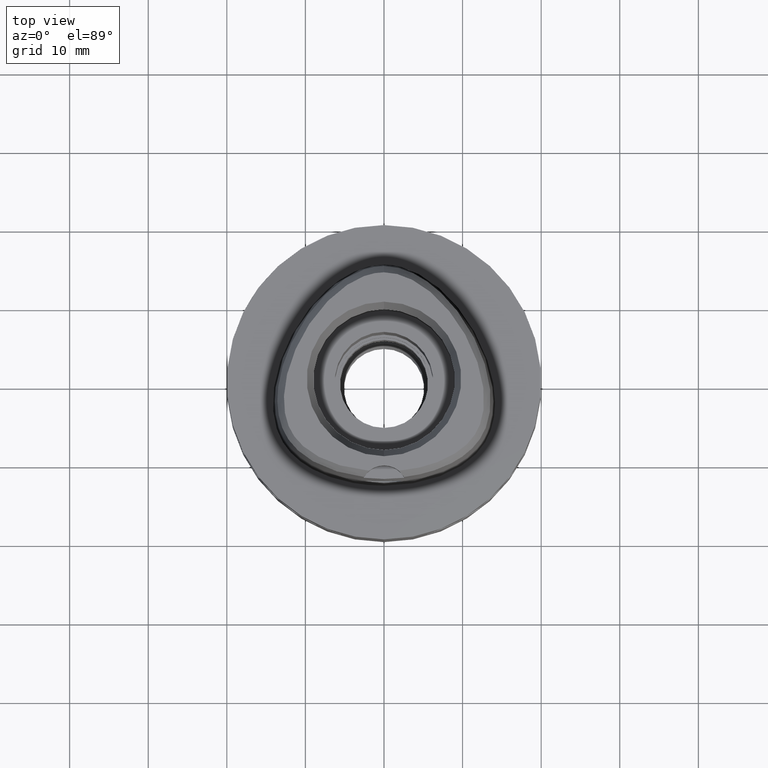
[diagram: clean part render]
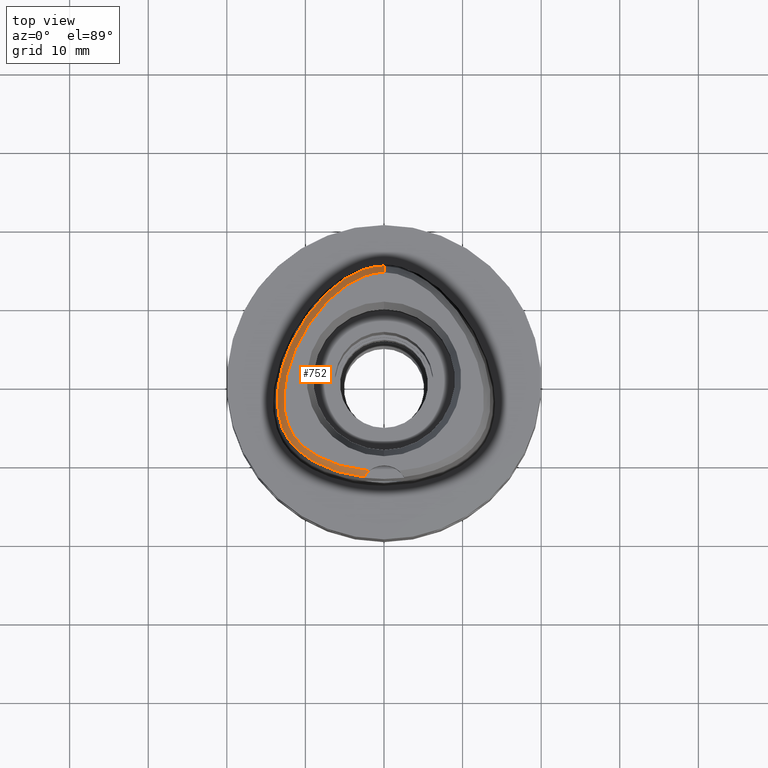
[diagram: same view with one face highlighted and labeled with its STEP entity id]
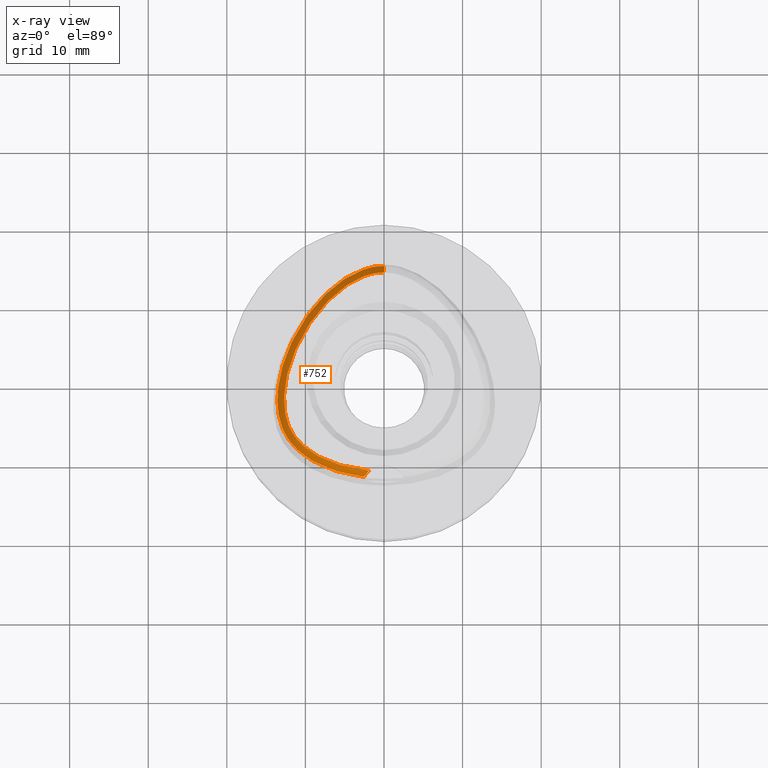
[diagram: x-ray of the same camera — body ghosted, the highlighted face saturated]
A machine part, top view. The second image highlights one B-rep face of the part: STEP entity #752.
The next image is the same camera in x-ray: the body ghosted, the highlighted face saturated — about 0% of this face is hidden behind the body in this view.
In plain terms, the highlighted face is a freeform B-spline surface patch.
Its self-contained STEP definition (entity closure, byte-faithful):
#1 = CARTESIAN_POINT ( 'NONE',  ( 0.2591982949555000082, 14.13770585890999953, 22.98263965290000144 ) ) ;
#5 = CARTESIAN_POINT ( 'NONE',  ( -0.1649659295969042594, 13.57127880780240936, 24.00000000000654765 ) ) ;
#22 = CARTESIAN_POINT ( 'NONE',  ( -11.58726606716848728, -7.068491431885327358, 23.99999999999938538 ) ) ;
#29 = CARTESIAN_POINT ( 'NONE',  ( -2.706780375149999696, -11.86575863696000077, 23.53801384251000073 ) ) ;
#38 = CARTESIAN_POINT ( 'NONE',  ( -11.21316404691000024, 4.531704922135999958, 23.53801403047999941 ) ) ;
#53 = CARTESIAN_POINT ( 'NONE',  ( -2.785574445495999640, -12.48322369189000014, 22.42726605135000284 ) ) ;
#73 = CARTESIAN_POINT ( 'NONE',  ( -1.960083074072000331, -11.63019276876999974, 24.09338771552999958 ) ) ;
#122 = CARTESIAN_POINT ( 'NONE',  ( -8.027776752782999736, 9.844481081236999387, 22.98264025916000008 ) ) ;
#148 = CARTESIAN_POINT ( 'NONE',  ( -9.043071677142000553, 9.140516351960000563, 22.42726519197000101 ) ) ;
#170 = CARTESIAN_POINT ( 'NONE',  ( -12.69626169958000084, -2.527283686685999786, 24.09338777099999973 ) ) ;
#194 = CARTESIAN_POINT ( 'NONE',  ( -1.335416903041000193E-10, 13.57127880780999796, 24.00000000000000000 ) ) ;
#197 = CARTESIAN_POINT ( 'NONE',  ( -13.00683018023999971, 0.2504871637855999866, 22.98264191507999854 ) ) ;
#200 = CARTESIAN_POINT ( 'NONE',  ( -8.737913808020804751, 9.598635897784548732, 22.52071717950011731 ) ) ;
#228 = CARTESIAN_POINT ( 'NONE',  ( -12.06574906526000035, -7.379224381854999848, 22.98263937934000012 ) ) ;
#231 = CARTESIAN_POINT ( 'NONE',  ( -13.60847657048246084, -2.623199557594069642, 22.52071717950011731 ) ) ;
#232 = EDGE_CURVE ( 'NONE', #2831, #3491, #3891, .T. ) ;
#250 = B_SPLINE_SURFACE_WITH_KNOTS ( 'NONE', 3, 3, ( 
 ( #4323, #2840, #1047, #4660 ),
 ( #2494, #1387, #1, #355 ),
 ( #4301, #2929, #3974, #3659 ),
 ( #2534, #2560, #713, #1456 ),
 ( #1021, #3995, #4347, #3291 ),
 ( #735, #671, #3242, #2182 ),
 ( #756, #4699, #379, #1430 ),
 ( #2134, #2513, #313, #1768 ),
 ( #1748, #3222, #3204, #1836 ),
 ( #692, #3610, #330, #1788 ),
 ( #2887, #1474, #4392, #1113 ),
 ( #530, #1242, #1854, #3110 ),
 ( #1604, #774, #2201, #2218 ),
 ( #2723, #4541, #2747, #3677 ),
 ( #3336, #4211, #122, #2303 ),
 ( #396, #3693, #4185, #148 ),
 ( #3082, #2692, #1981, #2954 ),
 ( #3470, #418, #2583, #4416 ),
 ( #3424, #854, #1874, #2669 ),
 ( #3312, #38, #1221, #2002 ),
 ( #1582, #3038, #1654, #3059 ),
 ( #4498, #1295, #4130, #4568 ),
 ( #909, #3776, #1498, #3827 ),
 ( #550, #1138, #197, #506 ),
 ( #1958, #4046, #4518, #4156 ),
 ( #884, #2333, #3805, #3449 ),
 ( #170, #1626, #1268, #2356 ),
 ( #325, #1378, #1033, #607 ),
 ( #4688, #2830, #1011, #2440 ),
 ( #3215, #1737, #684, #2773 ),
 ( #4235, #635, #4670, #4289 ),
 ( #2056, #4620, #279, #3502 ),
 ( #3903, #2486, #3924, #3851 ),
 ( #3194, #1400, #305, #1761 ),
 ( #1419, #251, #228, #1706 ),
 ( #990, #3529, #1684, #2105 ),
 ( #2082, #3137, #1780, #2463 ),
 ( #3161, #2850, #2875, #658 ),
 ( #3553, #4594, #4312, #4650 ),
 ( #958, #3580, #2412, #3950 ),
 ( #2129, #930, #3603, #3232 ),
 ( #4267, #2379, #1322, #3879 ),
 ( #579, #1350, #2804, #2032 ),
 ( #409, #2572, #723, #4338 ),
 ( #2171, #3350, #3259, #2594 ),
 ( #4013, #1447, #1129, #4058 ),
 ( #369, #3986, #785, #1801 ),
 ( #4427, #29, #1063, #53 ),
 ( #73, #2507, #4038, #3647 ),
 ( #1826, #4383, #4715, #3968 ),
 ( #1513, #2193, #767, #1864 ) ),
 .UNSPECIFIED., .F., .F., .F.,
 ( 4, 1, 1, 1, 1, 1, 1, 1, 1, 1, 1, 1, 1, 1, 1, 1, 1, 1, 1, 1, 1, 1, 1, 1, 1, 1, 1, 1, 1, 1, 1, 1, 1, 1, 1, 1, 1, 1, 1, 1, 1, 1, 1, 1, 1, 1, 1, 1, 4 ),
 ( 4, 4 ),
 ( -0.01579924575333999798, 0.0000000000000000000, 0.02200280252723000110, 0.04400560505777000031, 0.06600840758830001098, 0.08801121011883999978, 0.1100140126494000004, 0.1320168151798999934, 0.1540196177104999897, 0.1760224202409000072, 0.1980252227715000035, 0.2200280253019999965, 0.2420308278325999929, 0.2640336303632000448, 0.2860364328937000100, 0.3080392354242000308, 0.3300420379546999960, 0.3520448404853000479, 0.3740476430157999577, 0.3960504455463999540, 0.4180532480767999992, 0.4400560506073999956, 0.4620588531379000163, 0.4840616556684999572, 0.5060644581990999535, 0.5280672607295000542, 0.5500700632601001061, 0.5720728657906000159, 0.5940756683211999567, 0.6160784708517000885, 0.6380812733821999982, 0.6600840759127000190, 0.6820868784432999599, 0.7040896809739000117, 0.7260924835043999215, 0.7480952860348999423, 0.7700980885653999630, 0.7921008910960000149, 0.8141036936264999246, 0.8361064961570999765, 0.8581092986875999973, 0.8801121012181000181, 0.9021149037485999278, 0.9241177062791999797, 0.9461205088098000315, 0.9681233113403000523, 0.9901261138707999621, 1.000000000000000000, 1.006872802233000019 ),
 ( -0.04147151427682999741, 1.041512109102999961 ),
 .UNSPECIFIED. ) ;
#251 = CARTESIAN_POINT ( 'NONE',  ( -11.80454658750999997, -7.209596167742999384, 23.53801358476999894 ) ) ;
#255 = CARTESIAN_POINT ( 'NONE',  ( -3.539803248252299639, 13.67924950902899006, 22.52071717950011731 ) ) ;
#279 = CARTESIAN_POINT ( 'NONE',  ( -12.79152198026999976, -5.909211163940000233, 22.98263989039999800 ) ) ;
#305 = CARTESIAN_POINT ( 'NONE',  ( -12.33715904795000107, -6.923251328708999175, 22.98263968693000336 ) ) ;
#313 = CARTESIAN_POINT ( 'NONE',  ( -2.900437567588999954, 13.56853841449000164, 22.98263916024999887 ) ) ;
#325 = CARTESIAN_POINT ( 'NONE',  ( -12.67864422259000001, -3.278774819563000431, 24.09338770983000089 ) ) ;
#330 = CARTESIAN_POINT ( 'NONE',  ( -4.245340356904999446, 12.92793805842999966, 22.98264380724000233 ) ) ;
#333 = CARTESIAN_POINT ( 'NONE',  ( -10.56030324369912776, -8.308636727331927929, 23.99999999999733546 ) ) ;
#355 = CARTESIAN_POINT ( 'NONE',  ( 0.2706789244565999675, 14.44868266054000117, 22.42726559680000165 ) ) ;
#369 = CARTESIAN_POINT ( 'NONE',  ( -3.624959256130999563, -11.41608928938000034, 24.09338781487999981 ) ) ;
#379 = CARTESIAN_POINT ( 'NONE',  ( -2.272200732614999552, 13.78885938796000232, 22.98263924551999793 ) ) ;
#392 = B_SPLINE_CURVE_WITH_KNOTS ( 'NONE', 3,
 ( #1772, #2538, #3978, #2565, #738, #676, #2205, #1818, #2932, #1840, #4681, #3940, #333, #3296, #2159, #22, #3247, #3275, #2475, #2499, #1095, #4327, #4001, #760, #1791, #1478, #2517, #1435, #1411, #3594, #4031, #2910, #2121, #4397, #1119, #2959, #1502, #2864, #3680, #1051, #3636, #4352, #401, #3959, #717, #695, #2137, #5, #3613 ),
 .UNSPECIFIED., .F., .F.,
 ( 4, 1, 1, 1, 1, 1, 1, 1, 1, 1, 1, 1, 1, 1, 1, 1, 1, 1, 1, 1, 1, 1, 1, 1, 1, 1, 1, 1, 1, 1, 1, 1, 1, 1, 1, 1, 1, 1, 1, 1, 1, 1, 1, 1, 1, 1, 4 ),
 ( 0.0000000000000000000, 0.009873886129200037942, 0.03187668865969994769, 0.05387949119019996846, 0.07588229372080002033, 0.09788509625140007220, 0.1198878987818999819, 0.1418907013124000027, 0.1638935038429000235, 0.1858963063735000754, 0.2078991089039999851, 0.2299019114346000370, 0.2519047139651000577, 0.2739075164956000785, 0.2959103190260999883, 0.3179131215567000401, 0.3399159240872999810, 0.3619187266178000018, 0.3839215291482999115, 0.4059243316788000433, 0.4279271342093999841, 0.4499299367398998939, 0.4719327392704999458, 0.4939355418009000465, 0.5159383443314999873, 0.5379411468621000392, 0.5599439493925999489, 0.5819467519232000008, 0.6039495544535999905, 0.6259523569842000423, 0.6479551595146999521, 0.6699579620453000040, 0.6919607645757999137, 0.7139635671063000455, 0.7359663696367999552, 0.7579691721674000071, 0.7799719746980000590, 0.8019747772284999687, 0.8239775797591000206, 0.8459803822895000103, 0.8679831848201000621, 0.8899859873505999719, 0.9119887898811600557, 0.9339915924116999335, 0.9559943949422300413, 0.9779971974727700301, 1.000000000000000000 ),
 .UNSPECIFIED. ) ;
#396 = CARTESIAN_POINT ( 'NONE',  ( -8.316507978256000300, 8.553670610076999026, 24.09338778912999857 ) ) ;
#401 = CARTESIAN_POINT ( 'NONE',  ( -2.691801546375155230, 13.03762140634871791, 23.99999999999829825 ) ) ;
#409 = CARTESIAN_POINT ( 'NONE',  ( -6.694298805369998995, -10.58514403941999937, 24.09338770373999949 ) ) ;
#418 = CARTESIAN_POINT ( 'NONE',  ( -9.995342185030999360, 6.739752903089000213, 23.53801387060000039 ) ) ;
#506 = CARTESIAN_POINT ( 'NONE',  ( -13.31159609730000071, 0.3141242045084999823, 22.42726909389999790 ) ) ;
#530 = CARTESIAN_POINT ( 'NONE',  ( -5.329153807332999371, 11.47515335730999908, 24.09338780559999904 ) ) ;
#533 = CARTESIAN_POINT ( 'NONE',  ( -13.19588017074667086, -5.576003004572317678, 22.52071717950011731 ) ) ;
#550 = CARTESIAN_POINT ( 'NONE',  ( -12.39729834612999859, 0.1232130823398999847, 24.09338755743999982 ) ) ;
#579 = CARTESIAN_POINT ( 'NONE',  ( -7.539634354702000607, -10.23570789198999975, 24.09338779774000017 ) ) ;
#607 = CARTESIAN_POINT ( 'NONE',  ( -13.61132426612999957, -3.331228561231999841, 22.42726652737000137 ) ) ;
#635 = CARTESIAN_POINT ( 'NONE',  ( -12.67355072572999930, -5.255206339955999617, 23.53801366900999881 ) ) ;
#638 = CARTESIAN_POINT ( 'NONE',  ( -3.014424021963129086, -12.39773933600501188, 22.52071717950011731 ) ) ;
#644 = DIRECTION ( 'NONE',  ( -4.176109865771777512E-11, -0.4887572544033736976, 0.8724198222576535766 ) ) ;
#658 = CARTESIAN_POINT ( 'NONE',  ( -11.17341752087000017, -8.942524583768999946, 22.42726545915000003 ) ) ;
#671 = CARTESIAN_POINT ( 'NONE',  ( -1.598908125657999779, 13.64876606380999924, 23.53801380364999929 ) ) ;
#676 = CARTESIAN_POINT ( 'NONE',  ( -5.772139147997948250, -10.95484250004482085, 24.00000000000242650 ) ) ;
#684 = CARTESIAN_POINT ( 'NONE',  ( -13.12210102159000158, -4.718767710516999614, 22.98263948904000387 ) ) ;
#688 = CARTESIAN_POINT ( 'NONE',  ( -2.568703252653000479, -12.45023756080000155, 22.52071717950000007 ) ) ;
#692 = CARTESIAN_POINT ( 'NONE',  ( -3.939488461491999605, 12.38546782541999924, 24.09338738374000144 ) ) ;
#695 = CARTESIAN_POINT ( 'NONE',  ( -1.004624940264408073, 13.49964524824854983, 24.00000000000680700 ) ) ;
#713 = CARTESIAN_POINT ( 'NONE',  ( -0.5341614460199999304, 14.12754208626999919, 22.98263945003000330 ) ) ;
#717 = CARTESIAN_POINT ( 'NONE',  ( -1.540168727109926250, 13.39645525874208687, 23.99999999999537081 ) ) ;
#723 = CARTESIAN_POINT ( 'NONE',  ( -6.912923497279000351, -11.16819492021999771, 22.98264032135000079 ) ) ;
#735 = CARTESIAN_POINT ( 'NONE',  ( -1.528294909076999941, 13.34545213883999892, 24.09338774595000032 ) ) ;
#738 = CARTESIAN_POINT ( 'NONE',  ( -4.742193981400562031, -11.23614232520670519, 24.00000000000167688 ) ) ;
#752 = ADVANCED_FACE ( 'NONE', ( #3270 ), #250, .F. ) ;
#756 = CARTESIAN_POINT ( 'NONE',  ( -2.086747029330999759, 13.19428346685999998, 24.09338780247999878 ) ) ;
#760 = CARTESIAN_POINT ( 'NONE',  ( -12.74861612881142392, -2.526660231389759481, 24.00000000000740741 ) ) ;
#767 = CARTESIAN_POINT ( 'NONE',  ( -1.568688355287000125, -12.28504384393000137, 22.98264019661000290 ) ) ;
#774 = CARTESIAN_POINT ( 'NONE',  ( -6.263521032802000121, 11.12458897228999888, 23.53801388331000055 ) ) ;
#785 = CARTESIAN_POINT ( 'NONE',  ( -3.733483991219999965, -12.02920271497000115, 22.98263911049999919 ) ) ;
#811 = B_SPLINE_CURVE_WITH_KNOTS ( 'NONE', 3,
 ( #3444, #3770, #2614, #1235 ),
 .UNSPECIFIED., .F., .F.,
 ( 4, 4 ),
 ( 0.0000000000000000000, 1.000000000000000000 ),
 .UNSPECIFIED. ) ;
#854 = CARTESIAN_POINT ( 'NONE',  ( -10.63796652111999919, 5.650927872828000353, 23.53801367884999962 ) ) ;
#884 = CARTESIAN_POINT ( 'NONE',  ( -12.66042965418000144, -1.709904840115000102, 24.09338777852999769 ) ) ;
#909 = CARTESIAN_POINT ( 'NONE',  ( -12.15455549332000018, 1.134151078237000121, 24.09338753854000004 ) ) ;
#930 = CARTESIAN_POINT ( 'NONE',  ( -9.130082263832001388, -9.741626473702000411, 23.53801386848999755 ) ) ;
#958 = CARTESIAN_POINT ( 'NONE',  ( -9.556361008073999130, -9.080045456786999480, 24.09338772034999820 ) ) ;
#962 = CARTESIAN_POINT ( 'NONE',  ( -13.44334616472842114, -0.2854647376911818579, 22.52071717950011731 ) ) ;
#990 = CARTESIAN_POINT ( 'NONE',  ( -11.25304410319999882, -7.452491062493999507, 24.09338773538999945 ) ) ;
#992 = CARTESIAN_POINT ( 'NONE',  ( -12.48241503204998004, -7.206725678149864756, 22.52071717950011731 ) ) ;
#1011 = CARTESIAN_POINT ( 'NONE',  ( -13.23271012431999871, -4.045720918543999289, 22.98263984812000160 ) ) ;
#1012 = EDGE_CURVE ( 'NONE', #1216, #4631, #811, .T. ) ;
#1021 = CARTESIAN_POINT ( 'NONE',  ( -0.9966079105564999985, 13.44789389892000031, 24.09338777598999926 ) ) ;
#1033 = CARTESIAN_POINT ( 'NONE',  ( -13.30043091828000001, -3.313743980676000067, 22.98264025486000151 ) ) ;
#1047 = CARTESIAN_POINT ( 'NONE',  ( 0.3931144166138999529, 14.13079918290000059, 22.98263943087000172 ) ) ;
#1051 = CARTESIAN_POINT ( 'NONE',  ( -4.649494456246412000, 12.01569862248641130, 24.00000000000253308 ) ) ;
#1063 = CARTESIAN_POINT ( 'NONE',  ( -2.746177410322999890, -12.17449116442000090, 22.98263994693000356 ) ) ;
#1095 = CARTESIAN_POINT ( 'NONE',  ( -12.56273685366913462, -4.606827092195613815, 23.99999999999996803 ) ) ;
#1113 = CARTESIAN_POINT ( 'NONE',  ( -5.132864068521999279, 12.75313316760999882, 22.42727005765999593 ) ) ;
#1119 = CARTESIAN_POINT ( 'NONE',  ( -8.357232578964035596, 8.586563883649525053, 24.00000000000211031 ) ) ;
#1129 = CARTESIAN_POINT ( 'NONE',  ( -4.875091634992999801, -11.79074697565999941, 22.98264135431999833 ) ) ;
#1138 = CARTESIAN_POINT ( 'NONE',  ( -12.70206426318999959, 0.1868501230627000187, 23.53801473625999563 ) ) ;
#1216 = VERTEX_POINT ( 'NONE', #3299 ) ;
#1221 = CARTESIAN_POINT ( 'NONE',  ( -11.49405498181999974, 4.665932563519000098, 22.98264036083999784 ) ) ;
#1235 = CARTESIAN_POINT ( 'NONE',  ( -2.568703252653000479, -12.45023756080000155, 22.52071717950000007 ) ) ;
#1242 = CARTESIAN_POINT ( 'NONE',  ( -5.516428251515000269, 11.72388816253999799, 23.53801350856999974 ) ) ;
#1268 = CARTESIAN_POINT ( 'NONE',  ( -13.31896193635999914, -2.519868349220000248, 22.98263958859000056 ) ) ;
#1295 = CARTESIAN_POINT ( 'NONE',  ( -12.12533005184999979, 2.293781367112999625, 23.53801369734999938 ) ) ;
#1298 = CARTESIAN_POINT ( 'NONE',  ( -6.968888528386277592, -11.49954675419571082, 22.52071717950011731 ) ) ;
#1322 = CARTESIAN_POINT ( 'NONE',  ( -8.587708626282999802, -10.41400343900000180, 22.98263961261999810 ) ) ;
#1350 = CARTESIAN_POINT ( 'NONE',  ( -7.667411583440999934, -10.51963715381999975, 23.53801354746000030 ) ) ;
#1378 = CARTESIAN_POINT ( 'NONE',  ( -12.98953757043999957, -3.296259400118999761, 23.53801398235000164 ) ) ;
#1387 = CARTESIAN_POINT ( 'NONE',  ( 0.2477176654544999967, 13.82672905727000057, 23.53801370899999768 ) ) ;
#1399 = B_SPLINE_CURVE_WITH_KNOTS ( 'NONE', 3,
 ( #3830, #638, #3475, #1298, #3507, #1984, #4240, #2383, #992, #2417, #533, #3906, #231, #962, #3198, #3856, #200, #1687, #255, #1710, #3166, #4654 ),
 .UNSPECIFIED., .F., .F.,
 ( 4, 1, 1, 1, 1, 1, 1, 1, 1, 1, 1, 1, 1, 1, 1, 1, 1, 1, 1, 4 ),
 ( 0.0000000000000000000, 0.03040433083226065647, 0.1185493916653934249, 0.1626219220818010958, 0.2066944524984203613, 0.2507669829149338780, 0.2728032481231377204, 0.2948395133313415073, 0.3168757785396512094, 0.3389120437478551073, 0.3829845741644744006, 0.4270571045808820854, 0.4711296349973955744, 0.5592746958304226634, 0.6474197566634495304, 0.7355648174964765085, 0.8237098783293977933, 0.9118549391624987122, 0.9559274695790016541, 1.000000000000000000 ),
 .UNSPECIFIED. ) ;
#1400 = CARTESIAN_POINT ( 'NONE',  ( -12.06354368681999922, -6.774467648857000590, 23.53801372444999984 ) ) ;
#1411 = CARTESIAN_POINT ( 'NONE',  ( -11.88013947726376252, 2.210420412499511489, 23.99999999999711164 ) ) ;
#1419 = CARTESIAN_POINT ( 'NONE',  ( -11.54334410977000047, -7.039967953630999808, 24.09338779020000132 ) ) ;
#1430 = CARTESIAN_POINT ( 'NONE',  ( -2.364927584258000426, 14.08614734849999905, 22.42726496703999928 ) ) ;
#1435 = CARTESIAN_POINT ( 'NONE',  ( -12.20504609755019487, 1.147983555866421979, 23.99999999999703704 ) ) ;
#1447 = CARTESIAN_POINT ( 'NONE',  ( -4.802543192220000812, -11.48798990917000040, 23.53801448161999943 ) ) ;
#1456 = CARTESIAN_POINT ( 'NONE',  ( -0.5582591087254998863, 14.43805449814999875, 22.42726528318000234 ) ) ;
#1474 = CARTESIAN_POINT ( 'NONE',  ( -4.791482915268000298, 12.23231793829000047, 23.53801501935999951 ) ) ;
#1475 = ORIENTED_EDGE ( 'NONE', *, *, #232, .F. ) ;
#1478 = CARTESIAN_POINT ( 'NONE',  ( -12.61525294081405058, -0.8186751790038855336, 23.99999999999235811 ) ) ;
#1498 = CARTESIAN_POINT ( 'NONE',  ( -12.75508751459999957, 1.298673683515999988, 22.98264212087999780 ) ) ;
#1502 = CARTESIAN_POINT ( 'NONE',  ( -6.847495201776670370, 10.24231185839042624, 23.99999999999856826 ) ) ;
#1513 = CARTESIAN_POINT ( 'NONE',  ( -1.524076484801000220, -11.66436882156999921, 24.09338771518000044 ) ) ;
#1582 = CARTESIAN_POINT ( 'NONE',  ( -11.42295251735000150, 3.287002498914999737, 24.09338777321999814 ) ) ;
#1604 = CARTESIAN_POINT ( 'NONE',  ( -6.060822760804000175, 10.88826798057999845, 24.09338772985000077 ) ) ;
#1626 = CARTESIAN_POINT ( 'NONE',  ( -13.00761181796999999, -2.523576017952999795, 23.53801367980000236 ) ) ;
#1654 = CARTESIAN_POINT ( 'NONE',  ( -11.99950552155000061, 3.522085184454000206, 22.98263956430999855 ) ) ;
#1684 = CARTESIAN_POINT ( 'NONE',  ( -11.74797483188000058, -7.830665325228999052, 22.98263997648999890 ) ) ;
#1687 = CARTESIAN_POINT ( 'NONE',  ( -6.021703609490128173, 12.22251596750355418, 22.52071717950011731 ) ) ;
#1706 = CARTESIAN_POINT ( 'NONE',  ( -12.32695154299999984, -7.548852595967000312, 22.42726517390999774 ) ) ;
#1710 = CARTESIAN_POINT ( 'NONE',  ( -1.515894611552606852, 14.29262276281993138, 22.52071717950011731 ) ) ;
#1737 = CARTESIAN_POINT ( 'NONE',  ( -12.81674574834999980, -4.657659652377999393, 23.53801363459000129 ) ) ;
#1748 = CARTESIAN_POINT ( 'NONE',  ( -3.289480404771000011, 12.72202260128999995, 24.09338754482000056 ) ) ;
#1761 = CARTESIAN_POINT ( 'NONE',  ( -12.61077440908000113, -7.072035008560999536, 22.42726564940999978 ) ) ;
#1768 = CARTESIAN_POINT ( 'NONE',  ( -3.014331365080999969, 13.85836446589999937, 22.42726483520999992 ) ) ;
#1772 = CARTESIAN_POINT ( 'NONE',  ( -1.908902231482000111, -11.68567671431999955, 24.00000000000000000 ) ) ;
#1780 = CARTESIAN_POINT ( 'NONE',  ( -11.37996571040000049, -8.277130956116998561, 22.98263968922000089 ) ) ;
#1788 = CARTESIAN_POINT ( 'NONE',  ( -4.398266304612000077, 13.19917317494000031, 22.42727201899000278 ) ) ;
#1791 = CARTESIAN_POINT ( 'NONE',  ( -12.71262584673675455, -1.705815288732617452, 24.00000000000097344 ) ) ;
#1801 = CARTESIAN_POINT ( 'NONE',  ( -3.787746358765000210, -12.33575942775999934, 22.42726475830999888 ) ) ;
#1818 = CARTESIAN_POINT ( 'NONE',  ( -7.561120467872587625, -10.28345142432612214, 23.99999999999763389 ) ) ;
#1826 = CARTESIAN_POINT ( 'NONE',  ( -1.651235803524000012, -11.65522639481000056, 24.09338771419000125 ) ) ;
#1836 = CARTESIAN_POINT ( 'NONE',  ( -3.691443298437000031, 13.56528457187999948, 22.42726930629000037 ) ) ;
#1840 = CARTESIAN_POINT ( 'NONE',  ( -8.993364728475569336, -9.521626202594088539, 24.00000000000121148 ) ) ;
#1854 = CARTESIAN_POINT ( 'NONE',  ( -5.703702695696999392, 11.97262296775999957, 22.98263921154000045 ) ) ;
#1864 = CARTESIAN_POINT ( 'NONE',  ( -1.590994290530999944, -12.59538135510999979, 22.42726643732000014 ) ) ;
#1874 = CARTESIAN_POINT ( 'NONE',  ( -10.91056956805999967, 5.801274000348001003, 22.98263958651999772 ) ) ;
#1958 = CARTESIAN_POINT ( 'NONE',  ( -12.56343195281000114, -0.8261289329235000922, 24.09338777496000006 ) ) ;
#1981 = CARTESIAN_POINT ( 'NONE',  ( -9.550013532124999927, 7.960402340918999897, 22.98264050621999743 ) ) ;
#1984 = CARTESIAN_POINT ( 'NONE',  ( -10.46238780242477340, -9.543613000371195199, 22.52071717950011731 ) ) ;
#2002 = CARTESIAN_POINT ( 'NONE',  ( -11.77494591672999924, 4.800160204903000327, 22.42726669121000072 ) ) ;
#2032 = CARTESIAN_POINT ( 'NONE',  ( -7.922966040918999475, -11.08749567748999887, 22.42726504687999878 ) ) ;
#2056 = CARTESIAN_POINT ( 'NONE',  ( -12.20541419622999868, -5.698408555335999992, 24.09338774328999833 ) ) ;
#2082 = CARTESIAN_POINT ( 'NONE',  ( -10.91497460717000045, -7.862721354790999762, 24.09338776175999897 ) ) ;
#2105 = CARTESIAN_POINT ( 'NONE',  ( -11.99544019622000057, -8.019752456597000645, 22.42726609702999951 ) ) ;
#2121 = CARTESIAN_POINT ( 'NONE',  ( -9.776246037422239965, 6.601694411330527146, 24.00000000000663292 ) ) ;
#2129 = CARTESIAN_POINT ( 'NONE',  ( -8.965728096558001070, -9.477154463848000532, 24.09338773285000102 ) ) ;
#2134 = CARTESIAN_POINT ( 'NONE',  ( -2.672649972604999924, 12.98888631166999907, 24.09338781031000210 ) ) ;
#2137 = CARTESIAN_POINT ( 'NONE',  ( -0.4900182128077751331, 13.55873082895846693, 24.00000000000681410 ) ) ;
#2159 = CARTESIAN_POINT ( 'NONE',  ( -11.29465612497009275, -7.484286614359917600, 24.00000000000387246 ) ) ;
#2171 = CARTESIAN_POINT ( 'NONE',  ( -5.756853788278999851, -10.90477166551999844, 24.09338752417999885 ) ) ;
#2182 = CARTESIAN_POINT ( 'NONE',  ( -1.740134558819000032, 14.25539391375999898, 22.42726591902999900 ) ) ;
#2193 = CARTESIAN_POINT ( 'NONE',  ( -1.546382420043999950, -11.97470633274999940, 23.53801395589000123 ) ) ;
#2201 = CARTESIAN_POINT ( 'NONE',  ( -6.466219304798999978, 11.36090996400000108, 22.98264003675999945 ) ) ;
#2205 = CARTESIAN_POINT ( 'NONE',  ( -6.712679994720472720, -10.63416489130695197, 24.00000000000875033 ) ) ;
#2218 = CARTESIAN_POINT ( 'NONE',  ( -6.668917576796000724, 11.59723095572000062, 22.42726619021999923 ) ) ;
#2303 = CARTESIAN_POINT ( 'NONE',  ( -8.257859210509000292, 10.05420930288000037, 22.42726653401999926 ) ) ;
#2333 = CARTESIAN_POINT ( 'NONE',  ( -12.97083874411999993, -1.685584408668000078, 23.53801364250999839 ) ) ;
#2356 = CARTESIAN_POINT ( 'NONE',  ( -13.63031205475999919, -2.516160680487999457, 22.42726549738999964 ) ) ;
#2379 = CARTESIAN_POINT ( 'NONE',  ( -8.441572909743999986, -10.13905920121000115, 23.53801369070000149 ) ) ;
#2383 = CARTESIAN_POINT ( 'NONE',  ( -12.06912915253891860, -7.841969072900538684, 22.52071717950011731 ) ) ;
#2412 = CARTESIAN_POINT ( 'NONE',  ( -9.920850820702000306, -9.585029298225000716, 22.98264014025000179 ) ) ;
#2417 = CARTESIAN_POINT ( 'NONE',  ( -12.82590901148325813, -6.531187915556277979, 22.52071717950011731 ) ) ;
#2440 = CARTESIAN_POINT ( 'NONE',  ( -13.54164020306000005, -4.084841482255000322, 22.42726589859000086 ) ) ;
#2463 = CARTESIAN_POINT ( 'NONE',  ( -11.61246126202000006, -8.484335756779000093, 22.42726565294999830 ) ) ;
#2475 = CARTESIAN_POINT ( 'NONE',  ( -12.25469206170854797, -5.716132091641409119, 24.00000000000077804 ) ) ;
#2486 = CARTESIAN_POINT ( 'NONE',  ( -12.29403892457000147, -6.309591649309999717, 23.53801371928999941 ) ) ;
#2494 = CARTESIAN_POINT ( 'NONE',  ( 0.2362370359534000097, 13.51575225564000071, 24.09338776509000013 ) ) ;
#2499 = CARTESIAN_POINT ( 'NONE',  ( -12.42392521664306848, -5.185948956749275141, 24.00000000000645883 ) ) ;
#2507 = CARTESIAN_POINT ( 'NONE',  ( -1.988849990589000249, -11.94002420141999998, 23.53801395415000286 ) ) ;
#2513 = CARTESIAN_POINT ( 'NONE',  ( -2.786543770096999939, 13.27871236308000036, 23.53801348527999693 ) ) ;
#2517 = CARTESIAN_POINT ( 'NONE',  ( -12.44854562273084220, 0.1339138360837797137, 24.00000000000505551 ) ) ;
#2534 = CARTESIAN_POINT ( 'NONE',  ( -0.4859661206090000185, 13.50651726251999918, 24.09338778372000078 ) ) ;
#2538 = CARTESIAN_POINT ( 'NONE',  ( -2.090687641573896638, -11.66928185012243446, 23.99999999999809575 ) ) ;
#2557 = VECTOR ( 'NONE', #644, 1000.000000000000114 ) ;
#2560 = CARTESIAN_POINT ( 'NONE',  ( -0.5100637833144999744, 13.81702967439999874, 23.53801361686999982 ) ) ;
#2565 = CARTESIAN_POINT ( 'NONE',  ( -3.634083631275776938, -11.46763769349881734, 24.00000000000126832 ) ) ;
#2572 = CARTESIAN_POINT ( 'NONE',  ( -6.803611151324999717, -10.87666947982000032, 23.53801401253999970 ) ) ;
#2583 = CARTESIAN_POINT ( 'NONE',  ( -10.25872730823000012, 6.905719093079000004, 22.98264000875999713 ) ) ;
#2594 = CARTESIAN_POINT ( 'NONE',  ( -6.029558426337999322, -11.79808062634999999, 22.42726965399000250 ) ) ;
#2614 = CARTESIAN_POINT ( 'NONE',  ( -2.377475776474135216, -12.13328147865477646, 23.12252443323500728 ) ) ;
#2669 = CARTESIAN_POINT ( 'NONE',  ( -11.18317261500000015, 5.951620127868999965, 22.42726549418000204 ) ) ;
#2692 = CARTESIAN_POINT ( 'NONE',  ( -9.296746678052999258, 7.779368583612999544, 23.53801409648999865 ) ) ;
#2723 = CARTESIAN_POINT ( 'NONE',  ( -6.811015551322999961, 10.20476300467000108, 24.09338760115999634 ) ) ;
#2747 = CARTESIAN_POINT ( 'NONE',  ( -7.244902183430000697, 10.65136667212999910, 22.98264143871999821 ) ) ;
#2773 = CARTESIAN_POINT ( 'NONE',  ( -13.42745629482999981, -4.779875768655999835, 22.42726534348999934 ) ) ;
#2804 = CARTESIAN_POINT ( 'NONE',  ( -7.795188812180000149, -10.80356641564999975, 22.98263929716999954 ) ) ;
#2830 = CARTESIAN_POINT ( 'NONE',  ( -12.92378004559000004, -4.006600354833000921, 23.53801379764999879 ) ) ;
#2831 = VERTEX_POINT ( 'NONE', #3728 ) ;
#2840 = CARTESIAN_POINT ( 'NONE',  ( 0.3759704759642000238, 13.82014911701000059, 23.53801360817000088 ) ) ;
#2850 = CARTESIAN_POINT ( 'NONE',  ( -10.74040383174999924, -8.494839495653000228, 23.53801366856000143 ) ) ;
#2864 = CARTESIAN_POINT ( 'NONE',  ( -6.094907065610188468, 10.92800604363377026, 23.99999999999769429 ) ) ;
#2875 = CARTESIAN_POINT ( 'NONE',  ( -10.95691067630999882, -8.718682039710998311, 22.98263956385000029 ) ) ;
#2887 = CARTESIAN_POINT ( 'NONE',  ( -4.620792338641000363, 11.97191032363000041, 24.09338750020999953 ) ) ;
#2910 = CARTESIAN_POINT ( 'NONE',  ( -10.41120247049415148, 5.525862884540915232, 24.00000000000588329 ) ) ;
#2929 = CARTESIAN_POINT ( 'NONE',  ( -0.05011880665944999647, 13.83479008029000035, 23.53801378556000046 ) ) ;
#2932 = CARTESIAN_POINT ( 'NONE',  ( -8.320010339570091062, -9.910347637802830789, 24.00000000000207123 ) ) ;
#2954 = CARTESIAN_POINT ( 'NONE',  ( -9.803280386198000684, 8.141436098224000162, 22.42726691596000066 ) ) ;
#2959 = CARTESIAN_POINT ( 'NONE',  ( -7.606300872726281526, 9.460291049260460383, 24.00000000000155254 ) ) ;
#3038 = CARTESIAN_POINT ( 'NONE',  ( -11.71122901944999839, 3.404543841684999794, 23.53801366876000145 ) ) ;
#3059 = CARTESIAN_POINT ( 'NONE',  ( -12.28778202365000105, 3.639626527223000174, 22.42726545985000186 ) ) ;
#3082 = CARTESIAN_POINT ( 'NONE',  ( -9.043479823980000276, 7.598334826307000078, 24.09338768675999631 ) ) ;
#3110 = CARTESIAN_POINT ( 'NONE',  ( -5.890977139879000291, 12.22135777299000026, 22.42726491451000115 ) ) ;
#3111 = EDGE_CURVE ( 'NONE', #1216, #3491, #392, .T. ) ;
#3137 = CARTESIAN_POINT ( 'NONE',  ( -11.14747015879000003, -8.069926155454000494, 23.53801372548999638 ) ) ;
#3161 = CARTESIAN_POINT ( 'NONE',  ( -10.52389698719999878, -8.270996951595000368, 24.09338777325999814 ) ) ;
#3166 = CARTESIAN_POINT ( 'NONE',  ( -0.5039711950889876890, 14.40001990034896551, 22.52071717950011731 ) ) ;
#3174 = CARTESIAN_POINT ( 'NONE',  ( -6.273120490105999997E-11, 14.40001989798000182, 22.52071729252999788 ) ) ;
#3194 = CARTESIAN_POINT ( 'NONE',  ( -11.78992832569000093, -6.625683969004999341, 24.09338776196999987 ) ) ;
#3198 = CARTESIAN_POINT ( 'NONE',  ( -12.68166860123669615, 2.767886241324277741, 22.52071717950011731 ) ) ;
#3204 = CARTESIAN_POINT ( 'NONE',  ( -3.557455667215000172, 13.28419724834999904, 22.98264205247000191 ) ) ;
#3215 = CARTESIAN_POINT ( 'NONE',  ( -12.51139047510999980, -4.596551594239000060, 24.09338778013000137 ) ) ;
#3222 = CARTESIAN_POINT ( 'NONE',  ( -3.423468035992999869, 13.00310992482000039, 23.53801479863999901 ) ) ;
#3232 = CARTESIAN_POINT ( 'NONE',  ( -9.458790598379000159, -10.27057049341000017, 22.42726613976000039 ) ) ;
#3242 = CARTESIAN_POINT ( 'NONE',  ( -1.669521342238999839, 13.95207998879000044, 22.98263986133999737 ) ) ;
#3247 = CARTESIAN_POINT ( 'NONE',  ( -11.83593754558362043, -6.650702378112667290, 24.00000000000393996 ) ) ;
#3259 = CARTESIAN_POINT ( 'NONE',  ( -5.938656880317999764, -11.50031097273999947, 22.98264227738999921 ) ) ;
#3270 = FACE_OUTER_BOUND ( 'NONE', #4665, .T. ) ;
#3275 = CARTESIAN_POINT ( 'NONE',  ( -12.05760136210488476, -6.203690849628880954, 24.00000000000129674 ) ) ;
#3291 = CARTESIAN_POINT ( 'NONE',  ( -1.139638969361999932, 14.37118476335000139, 22.42726541336000068 ) ) ;
#3296 = CARTESIAN_POINT ( 'NONE',  ( -10.95406941133074241, -7.897563445517728375, 24.00000000000413181 ) ) ;
#3299 = CARTESIAN_POINT ( 'NONE',  ( -1.908902231482000111, -11.68567671431999955, 24.00000000000000000 ) ) ;
#3312 = CARTESIAN_POINT ( 'NONE',  ( -10.93227311200000074, 4.397477280752999818, 24.09338770011000008 ) ) ;
#3336 = CARTESIAN_POINT ( 'NONE',  ( -7.567611837331999602, 9.425024637946000539, 24.09338770944000174 ) ) ;
#3350 = CARTESIAN_POINT ( 'NONE',  ( -5.847755334299000296, -11.20254131913000073, 23.53801490078000214 ) ) ;
#3424 = CARTESIAN_POINT ( 'NONE',  ( -10.36536347418000048, 5.500581745306999615, 24.09338777118999886 ) ) ;
#3444 = CARTESIAN_POINT ( 'NONE',  ( -1.908902231482000111, -11.68567671431999955, 24.00000000000000000 ) ) ;
#3449 = CARTESIAN_POINT ( 'NONE',  ( -13.59165692398999958, -1.636943545775000119, 22.42726537048999802 ) ) ;
#3470 = CARTESIAN_POINT ( 'NONE',  ( -9.731957061833000466, 6.573786713097999446, 24.09338773242999920 ) ) ;
#3475 = CARTESIAN_POINT ( 'NONE',  ( -4.736458213768273140, -12.13940339378071265, 22.52071717950011731 ) ) ;
#3491 = VERTEX_POINT ( 'NONE', #194 ) ;
#3502 = CARTESIAN_POINT ( 'NONE',  ( -13.08457587228000030, -6.014612468242999554, 22.42726596395000271 ) ) ;
#3507 = CARTESIAN_POINT ( 'NONE',  ( -9.075996546496524431, -10.47368666962574935, 22.52071717950011731 ) ) ;
#3529 = CARTESIAN_POINT ( 'NONE',  ( -11.50050946754000059, -7.641578193861000123, 23.53801385594000095 ) ) ;
#3553 = CARTESIAN_POINT ( 'NONE',  ( -10.07328801673999941, -8.677237951818998596, 24.09338778025000138 ) ) ;
#3580 = CARTESIAN_POINT ( 'NONE',  ( -9.738605914387999718, -9.332537377505998322, 23.53801393030000000 ) ) ;
#3594 = CARTESIAN_POINT ( 'NONE',  ( -11.47142705079909852, 3.306767418047316109, 23.99999999999787548 ) ) ;
#3603 = CARTESIAN_POINT ( 'NONE',  ( -9.294436431106001706, -10.00609848355999887, 22.98264000411999675 ) ) ;
#3610 = CARTESIAN_POINT ( 'NONE',  ( -4.092414409198999792, 12.65670294192000078, 23.53801559548999833 ) ) ;
#3613 = CARTESIAN_POINT ( 'NONE',  ( -1.335416903041000193E-10, 13.57127880780999796, 24.00000000000000000 ) ) ;
#3636 = CARTESIAN_POINT ( 'NONE',  ( -3.965203405004056769, 12.43107680024658457, 23.99999999999524647 ) ) ;
#3647 = CARTESIAN_POINT ( 'NONE',  ( -2.046383823624999820, -12.55968706672999957, 22.42726643139000231 ) ) ;
#3659 = CARTESIAN_POINT ( 'NONE',  ( -0.05458058452716999659, 14.45751557938999809, 22.42726585743999834 ) ) ;
#3677 = CARTESIAN_POINT ( 'NONE',  ( -7.461845499483000133, 10.87466850586000078, 22.42726835749000003 ) ) ;
#3680 = CARTESIAN_POINT ( 'NONE',  ( -5.360644550569200639, 11.51697883926297372, 23.99999999999657874 ) ) ;
#3693 = CARTESIAN_POINT ( 'NONE',  ( -8.558695877885000414, 8.749285857370999508, 23.53801359007999849 ) ) ;
#3728 = CARTESIAN_POINT ( 'NONE',  ( -6.273120490105999997E-11, 14.40001989798000182, 22.52071729252999788 ) ) ;
#3770 = CARTESIAN_POINT ( 'NONE',  ( -2.145202358299375334, -11.88058199923430536, 23.61561870673500962 ) ) ;
#3776 = CARTESIAN_POINT ( 'NONE',  ( -12.45482150395999987, 1.216412380877000210, 23.53801482970999714 ) ) ;
#3805 = CARTESIAN_POINT ( 'NONE',  ( -13.28124783406000198, -1.661263977221999921, 22.98263950649999643 ) ) ;
#3827 = CARTESIAN_POINT ( 'NONE',  ( -13.05535352523999926, 1.380934986156000077, 22.42726941205000202 ) ) ;
#3830 = CARTESIAN_POINT ( 'NONE',  ( -2.568703252653000479, -12.45023756080000155, 22.52071717950000007 ) ) ;
#3851 = CARTESIAN_POINT ( 'NONE',  ( -12.86250292724999866, -6.564207674970999662, 22.42726563183000010 ) ) ;
#3856 = CARTESIAN_POINT ( 'NONE',  ( -11.01301038052711156, 6.358384390486584437, 22.52071717950011731 ) ) ;
#3879 = CARTESIAN_POINT ( 'NONE',  ( -8.733844342820999529, -10.68894767678000157, 22.42726553453000093 ) ) ;
#3891 = LINE ( 'NONE', #3174, #2557 ) ;
#3903 = CARTESIAN_POINT ( 'NONE',  ( -12.00980692323999932, -6.182283636480000233, 24.09338776300999996 ) ) ;
#3906 = CARTESIAN_POINT ( 'NONE',  ( -13.49620532111852711, -4.288887307616780831, 22.52071717950011731 ) ) ;
#3924 = CARTESIAN_POINT ( 'NONE',  ( -12.57827092591000095, -6.436899662141000178, 22.98263967555999798 ) ) ;
#3940 = CARTESIAN_POINT ( 'NONE',  ( -10.10686734004836929, -8.717417447991447688, 24.00000000000235900 ) ) ;
#3950 = CARTESIAN_POINT ( 'NONE',  ( -10.10309572701999947, -9.837521218943001244, 22.42726635018999914 ) ) ;
#3959 = CARTESIAN_POINT ( 'NONE',  ( -2.102339319506597359, 13.24427330329382713, 23.99999999999581490 ) ) ;
#3968 = CARTESIAN_POINT ( 'NONE',  ( -1.723789885129999977, -12.58583388027999916, 22.42726645392000151 ) ) ;
#3974 = CARTESIAN_POINT ( 'NONE',  ( -0.05234969559331000694, 14.14615282984000011, 22.98263982149999762 ) ) ;
#3978 = CARTESIAN_POINT ( 'NONE',  ( -2.674008066188343857, -11.60894038318411070, 23.99999999999997513 ) ) ;
#3986 = CARTESIAN_POINT ( 'NONE',  ( -3.679221623676000252, -11.72264600217000030, 23.53801346268999595 ) ) ;
#3995 = CARTESIAN_POINT ( 'NONE',  ( -1.044284930157999725, 13.75565752039000067, 23.53801365510999943 ) ) ;
#4001 = CARTESIAN_POINT ( 'NONE',  ( -12.73092184452466036, -3.281714902708291248, 23.99999999999797851 ) ) ;
#4013 = CARTESIAN_POINT ( 'NONE',  ( -4.729994749447000046, -11.18523284267999962, 24.09338760890999964 ) ) ;
#4031 = CARTESIAN_POINT ( 'NONE',  ( -10.97950574081523456, 4.420048049596854156, 24.00000000000562750 ) ) ;
#4038 = CARTESIAN_POINT ( 'NONE',  ( -2.017616907107000035, -12.24985563408000111, 22.98264019276999903 ) ) ;
#4046 = CARTESIAN_POINT ( 'NONE',  ( -12.87160971325999981, -0.7818016964433999183, 23.53801366012000074 ) ) ;
#4058 = CARTESIAN_POINT ( 'NONE',  ( -4.947640077765999678, -12.09350404215000019, 22.42726822702999812 ) ) ;
#4130 = CARTESIAN_POINT ( 'NONE',  ( -12.42008443433000053, 2.393993240028999825, 22.98263962725000198 ) ) ;
#4156 = CARTESIAN_POINT ( 'NONE',  ( -13.48796523414000070, -0.6931472234831000945, 22.42726543044000209 ) ) ;
#4185 = CARTESIAN_POINT ( 'NONE',  ( -8.800883777514000528, 8.944901104664998215, 22.98263939102000109 ) ) ;
#4211 = CARTESIAN_POINT ( 'NONE',  ( -7.797694295057999270, 9.634752859590999918, 23.53801398430000091 ) ) ;
#4235 = CARTESIAN_POINT ( 'NONE',  ( -12.37346491325999942, -5.171948991037000454, 24.09338777318000169 ) ) ;
#4240 = CARTESIAN_POINT ( 'NONE',  ( -11.42690036617045912, -8.639965951773998398, 22.52071717950011731 ) ) ;
#4254 = ORIENTED_EDGE ( 'NONE', *, *, #1012, .F. ) ;
#4267 = CARTESIAN_POINT ( 'NONE',  ( -8.295437193205998483, -9.864114963429999605, 24.09338776879000221 ) ) ;
#4289 = CARTESIAN_POINT ( 'NONE',  ( -13.27372235066999906, -5.421721037792999631, 22.42726546066000282 ) ) ;
#4301 = CARTESIAN_POINT ( 'NONE',  ( -0.04788791772558999987, 13.52342733075000147, 24.09338774961999974 ) ) ;
#4312 = CARTESIAN_POINT ( 'NONE',  ( -10.47267834306000012, -9.155130312553000138, 22.98263948777000110 ) ) ;
#4323 = CARTESIAN_POINT ( 'NONE',  ( 0.3588265353144999836, 13.50949905112000060, 24.09338778548000093 ) ) ;
#4327 = CARTESIAN_POINT ( 'NONE',  ( -12.66679745937409862, -3.974058027850772667, 24.00000000000130385 ) ) ;
#4338 = CARTESIAN_POINT ( 'NONE',  ( -7.022235843234000185, -11.45972036062000043, 22.42726663015999833 ) ) ;
#4347 = CARTESIAN_POINT ( 'NONE',  ( -1.091961949759999939, 14.06342114187000192, 22.98263953423999695 ) ) ;
#4352 = CARTESIAN_POINT ( 'NONE',  ( -3.312010815207238057, 12.76928825342367801, 23.99999999999661782 ) ) ;
#4383 = CARTESIAN_POINT ( 'NONE',  ( -1.675420497393000030, -11.96542888996000009, 23.53801396077000163 ) ) ;
#4392 = CARTESIAN_POINT ( 'NONE',  ( -4.962173491895000232, 12.49272555295000053, 22.98264253851000305 ) ) ;
#4397 = CARTESIAN_POINT ( 'NONE',  ( -9.086067383145843834, 7.628776179868660634, 24.00000000000032685 ) ) ;
#4407 = ORIENTED_EDGE ( 'NONE', *, *, #3111, .T. ) ;
#4416 = CARTESIAN_POINT ( 'NONE',  ( -10.52211243142999919, 7.071685283069999883, 22.42726614693000187 ) ) ;
#4427 = CARTESIAN_POINT ( 'NONE',  ( -2.667383339977000389, -11.55702610948999975, 24.09338773809999878 ) ) ;
#4440 = ORIENTED_EDGE ( 'NONE', *, *, #4567, .F. ) ;
#4498 = CARTESIAN_POINT ( 'NONE',  ( -11.83057566936000171, 2.193569494195999781, 24.09338776744000299 ) ) ;
#4518 = CARTESIAN_POINT ( 'NONE',  ( -13.17978747370000114, -0.7374744599632999664, 22.98263954527999786 ) ) ;
#4541 = CARTESIAN_POINT ( 'NONE',  ( -7.027958867377000374, 10.42806483839999920, 23.53801451993999905 ) ) ;
#4567 = EDGE_CURVE ( 'NONE', #4631, #2831, #1399, .T. ) ;
#4568 = CARTESIAN_POINT ( 'NONE',  ( -12.71483881682000039, 2.494205112946000558, 22.42726555715000103 ) ) ;
#4594 = CARTESIAN_POINT ( 'NONE',  ( -10.27298317989999887, -8.916184132185998479, 23.53801363400999946 ) ) ;
#4620 = CARTESIAN_POINT ( 'NONE',  ( -12.49846808825000011, -5.803809859638000113, 23.53801381684000305 ) ) ;
#4631 = VERTEX_POINT ( 'NONE', #688 ) ;
#4650 = CARTESIAN_POINT ( 'NONE',  ( -10.67237350622000136, -9.394076492920000021, 22.42726534151999829 ) ) ;
#4654 = CARTESIAN_POINT ( 'NONE',  ( -6.273120490105999997E-11, 14.40001989798000182, 22.52071729252999788 ) ) ;
#4660 = CARTESIAN_POINT ( 'NONE',  ( 0.4102583572636000486, 14.44144924878999880, 22.42726525356999900 ) ) ;
#4665 = EDGE_LOOP ( 'NONE', ( #4407, #1475, #4440, #4254 ) ) ;
#4670 = CARTESIAN_POINT ( 'NONE',  ( -12.97363653820000096, -5.338463688873999580, 22.98263956482999859 ) ) ;
#4681 = CARTESIAN_POINT ( 'NONE',  ( -9.587006019868894668, -9.122502708652341141, 23.99999999999673861 ) ) ;
#4688 = CARTESIAN_POINT ( 'NONE',  ( -12.61484996686000137, -3.967479791121999888, 24.09338774716999865 ) ) ;
#4699 = CARTESIAN_POINT ( 'NONE',  ( -2.179473880972999655, 13.49157142740999937, 23.53801352400000013 ) ) ;
#4715 = CARTESIAN_POINT ( 'NONE',  ( -1.699605191262000048, -12.27563138512000052, 22.98264020734000113 ) ) ;